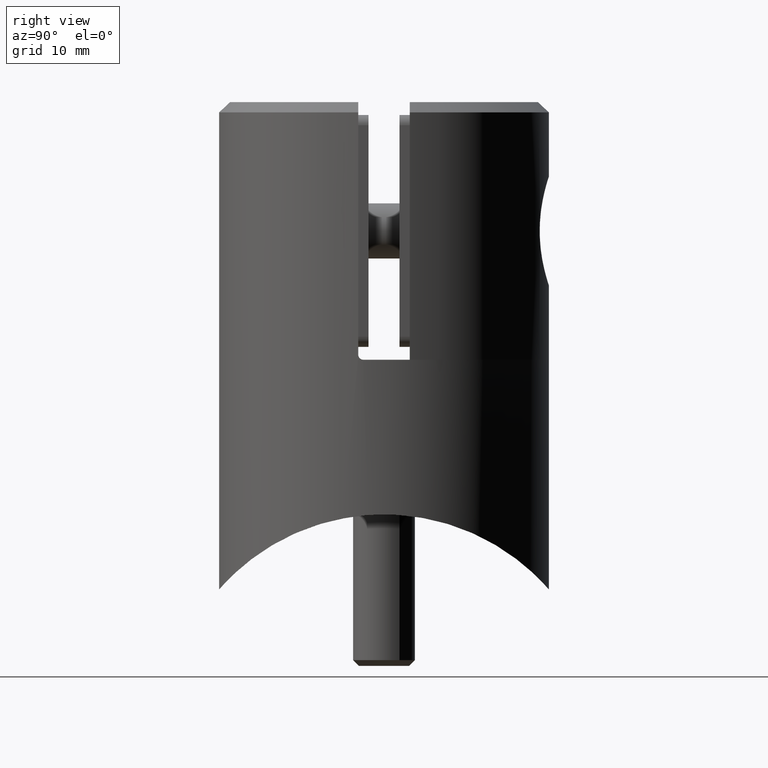
[diagram: clean part render]
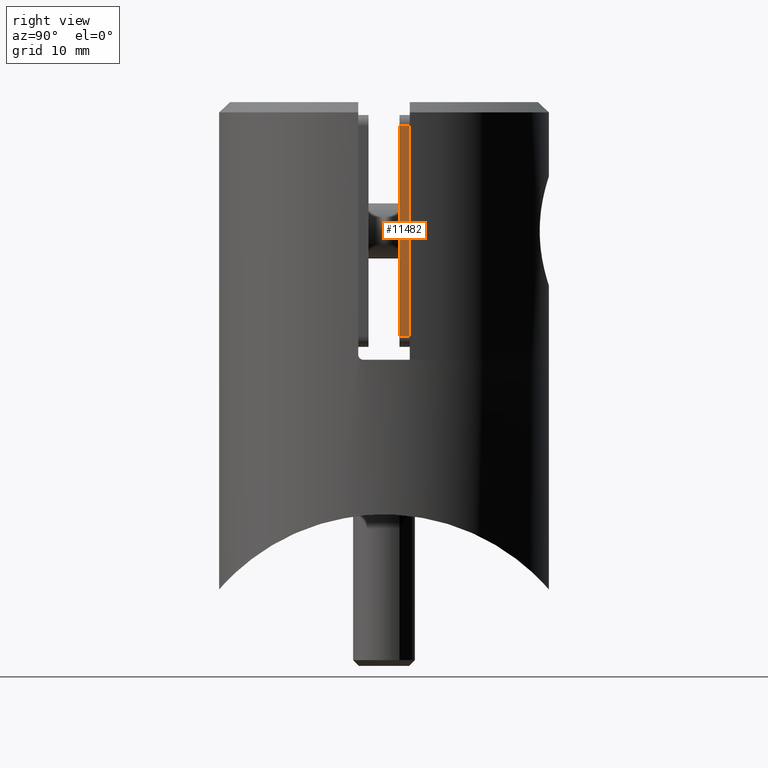
[diagram: same view with one face highlighted and labeled with its STEP entity id]
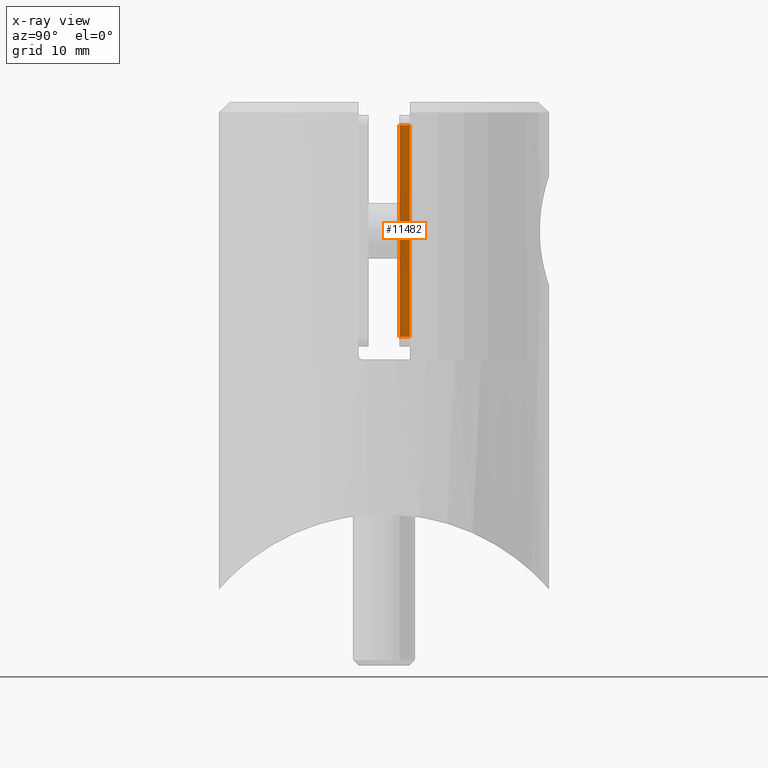
[diagram: x-ray of the same camera — body ghosted, the highlighted face saturated]
A machine part, right view. The second image highlights one B-rep face of the part: STEP entity #11482.
The next image is the same camera in x-ray: the body ghosted, the highlighted face saturated — about 0% of this face is hidden behind the body in this view.
In plain terms, the highlighted planar face has unit normal (-1, 0, 0).
Its self-contained STEP definition (entity closure, byte-faithful):
#108 = LINE ( 'NONE', #16269, #14271 ) ;
#1589 = CARTESIAN_POINT ( 'NONE',  ( 14.74999999999999645, 0.000000000000000000, -10.24999999999999289 ) ) ;
#3340 = LINE ( 'NONE', #6179, #10314 ) ;
#3662 = CARTESIAN_POINT ( 'NONE',  ( 14.75000000000000000, 0.000000000000000000, 11.24999999999999822 ) ) ;
#3784 = DIRECTION ( 'NONE',  ( -0.000000000000000000, 1.000000000000000000, -0.000000000000000000 ) ) ;
#4163 = EDGE_LOOP ( 'NONE', ( #11242, #11055, #17474, #6069 ) ) ;
#5035 = VECTOR ( 'NONE', #10550, 1000.000000000000000 ) ;
#6069 = ORIENTED_EDGE ( 'NONE', *, *, #8077, .T. ) ;
#6179 = CARTESIAN_POINT ( 'NONE',  ( 14.75000000000000000, 1.000000000000000000, 11.24999999999999822 ) ) ;
#6364 = LINE ( 'NONE', #3662, #5035 ) ;
#6443 = DIRECTION ( 'NONE',  ( -1.000000000000000000, 0.000000000000000000, 1.541976423090495633E-16 ) ) ;
#6763 = EDGE_CURVE ( 'NONE', #17456, #13634, #6364, .T. ) ;
#7392 = VERTEX_POINT ( 'NONE', #13153 ) ;
#7900 = DIRECTION ( 'NONE',  ( 1.541976423090495633E-16, 0.000000000000000000, 1.000000000000000000 ) ) ;
#7942 = CARTESIAN_POINT ( 'NONE',  ( 14.75000000000000000, 0.000000000000000000, 10.24999999999999822 ) ) ;
#8015 = PLANE ( 'NONE',  #12696 ) ;
#8077 = EDGE_CURVE ( 'NONE', #7392, #17456, #16223, .T. ) ;
#8150 = EDGE_CURVE ( 'NONE', #13634, #10834, #108, .T. ) ;
#8915 = DIRECTION ( 'NONE',  ( -1.541976423090495387E-16, 0.000000000000000000, -1.000000000000000000 ) ) ;
#10314 = VECTOR ( 'NONE', #8915, 1000.000000000000000 ) ;
#10550 = DIRECTION ( 'NONE',  ( -1.541976423090495387E-16, 0.000000000000000000, -1.000000000000000000 ) ) ;
#10834 = VERTEX_POINT ( 'NONE', #14562 ) ;
#11055 = ORIENTED_EDGE ( 'NONE', *, *, #8150, .T. ) ;
#11242 = ORIENTED_EDGE ( 'NONE', *, *, #6763, .T. ) ;
#11482 = ADVANCED_FACE ( 'NONE', ( #14265 ), #8015, .F. ) ;
#12108 = CARTESIAN_POINT ( 'NONE',  ( 14.75000000000000000, 1.000000000000000000, 11.24999999999999822 ) ) ;
#12696 = AXIS2_PLACEMENT_3D ( 'NONE', #12108, #6443, #7900 ) ;
#12874 = EDGE_CURVE ( 'NONE', #7392, #10834, #3340, .T. ) ;
#13153 = CARTESIAN_POINT ( 'NONE',  ( 14.75000000000000000, 1.000000000000000000, 10.24999999999999822 ) ) ;
#13634 = VERTEX_POINT ( 'NONE', #1589 ) ;
#13834 = VECTOR ( 'NONE', #17053, 1000.000000000000000 ) ;
#14265 = FACE_OUTER_BOUND ( 'NONE', #4163, .T. ) ;
#14271 = VECTOR ( 'NONE', #3784, 1000.000000000000000 ) ;
#14562 = CARTESIAN_POINT ( 'NONE',  ( 14.74999999999999645, 1.000000000000000000, -10.24999999999999289 ) ) ;
#16223 = LINE ( 'NONE', #17182, #13834 ) ;
#16269 = CARTESIAN_POINT ( 'NONE',  ( 14.74999999999999645, 1.000000000000000000, -10.25000000000000000 ) ) ;
#17053 = DIRECTION ( 'NONE',  ( 0.000000000000000000, -1.000000000000000000, 0.000000000000000000 ) ) ;
#17182 = CARTESIAN_POINT ( 'NONE',  ( 14.75000000000000000, 1.000000000000000000, 10.24999999999999822 ) ) ;
#17456 = VERTEX_POINT ( 'NONE', #7942 ) ;
#17474 = ORIENTED_EDGE ( 'NONE', *, *, #12874, .F. ) ;